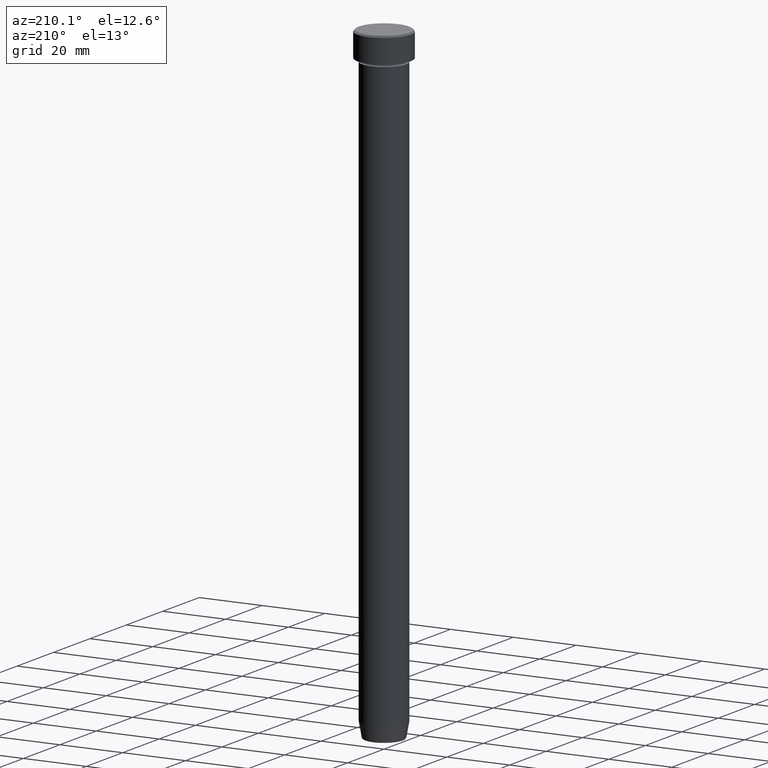
[diagram: clean part render]
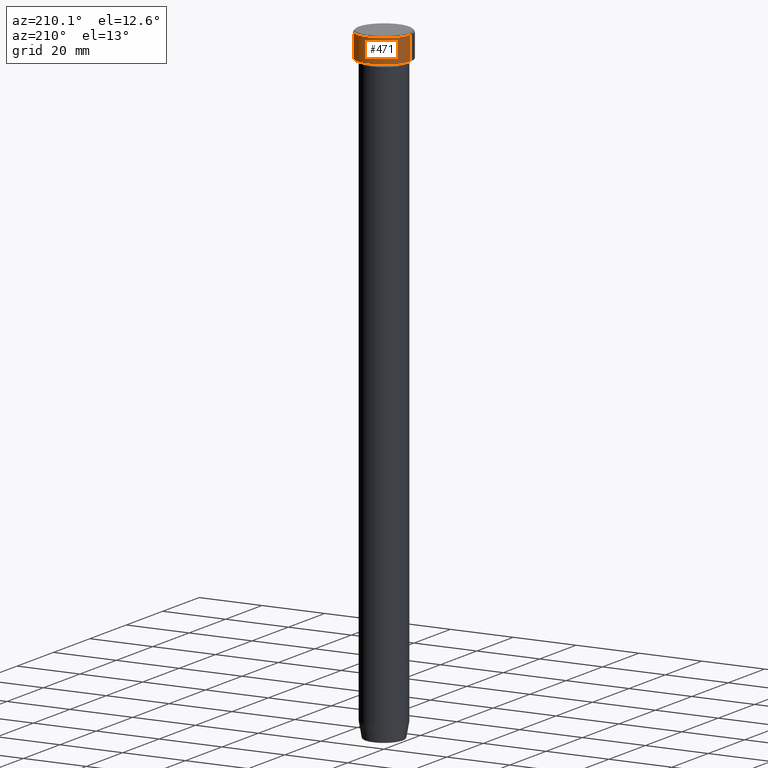
[diagram: same view with one face highlighted and labeled with its STEP entity id]
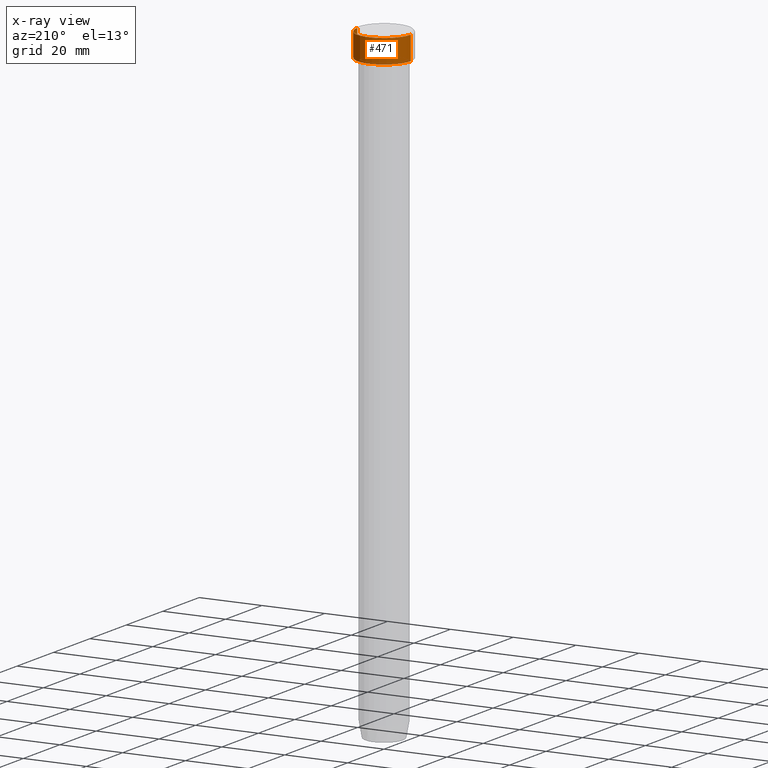
[diagram: x-ray of the same camera — body ghosted, the highlighted face saturated]
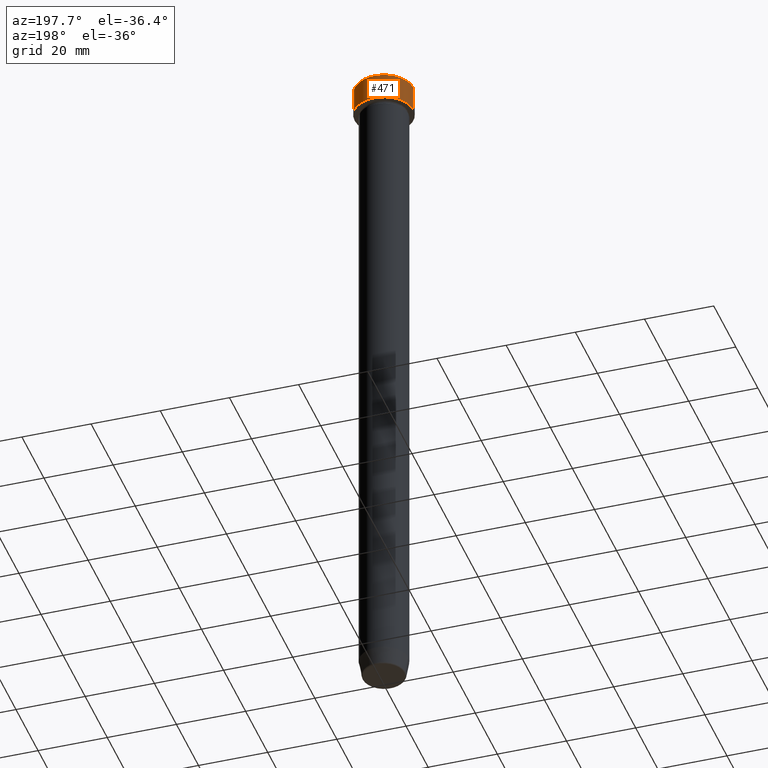
[diagram: same view with one face highlighted and labeled with its STEP entity id]
A machine part, auxiliary view. The second image highlights one B-rep face of the part: STEP entity #471.
The next image is the same camera in x-ray: the body ghosted, the highlighted face saturated — about 0% of this face is hidden behind the body in this view.
A second angle (auxiliary view) of the same face is appended — the face is thin or edge-on in the first view.
In plain terms, the highlighted cylindrical surface (edge-blend (fillet) strip) has radius 8.5 mm, axis along (-0, -0, 1).
Its self-contained STEP definition (entity closure, byte-faithful):
#10 = CARTESIAN_POINT ( 'NONE',  ( 0.000000000000000000, 0.000000000000000000, -8.000000000000000000 ) ) ;
#17 = DIRECTION ( 'NONE',  ( 1.000000000000000000, 0.000000000000000000, 0.000000000000000000 ) ) ;
#51 = CARTESIAN_POINT ( 'NONE',  ( -8.500000000000000000, 1.040949779275250140E-15, 0.000000000000000000 ) ) ;
#63 = VERTEX_POINT ( 'NONE', #586 ) ;
#74 = EDGE_CURVE ( 'NONE', #441, #63, #313, .T. ) ;
#81 = DIRECTION ( 'NONE',  ( 1.000000000000000000, 0.000000000000000000, 0.000000000000000000 ) ) ;
#113 = ORIENTED_EDGE ( 'NONE', *, *, #356, .T. ) ;
#146 = AXIS2_PLACEMENT_3D ( 'NONE', #354, #499, #81 ) ;
#156 = ORIENTED_EDGE ( 'NONE', *, *, #460, .T. ) ;
#171 = CARTESIAN_POINT ( 'NONE',  ( 0.000000000000000000, 0.000000000000000000, 0.000000000000000000 ) ) ;
#178 = DIRECTION ( 'NONE',  ( -0.000000000000000000, -0.000000000000000000, 1.000000000000000000 ) ) ;
#214 = AXIS2_PLACEMENT_3D ( 'NONE', #10, #524, #17 ) ;
#245 = VERTEX_POINT ( 'NONE', #557 ) ;
#248 = EDGE_CURVE ( 'NONE', #245, #348, #470, .T. ) ;
#275 = DIRECTION ( 'NONE',  ( 1.000000000000000000, 0.000000000000000000, 0.000000000000000000 ) ) ;
#289 = EDGE_LOOP ( 'NONE', ( #113, #462, #156, #487 ) ) ;
#304 = CARTESIAN_POINT ( 'NONE',  ( 8.500000000000000000, 0.000000000000000000, -8.000000000000000000 ) ) ;
#313 = LINE ( 'NONE', #589, #597 ) ;
#330 = CIRCLE ( 'NONE', #214, 8.500000000000000000 ) ;
#348 = VERTEX_POINT ( 'NONE', #475 ) ;
#354 = CARTESIAN_POINT ( 'NONE',  ( 0.000000000000000000, 0.000000000000000000, -0.4999999999999987232 ) ) ;
#356 = EDGE_CURVE ( 'NONE', #441, #245, #330, .T. ) ;
#377 = CIRCLE ( 'NONE', #146, 8.500000000000000000 ) ;
#403 = FACE_OUTER_BOUND ( 'NONE', #289, .T. ) ;
#426 = VECTOR ( 'NONE', #521, 1000.000000000000000 ) ;
#441 = VERTEX_POINT ( 'NONE', #304 ) ;
#460 = EDGE_CURVE ( 'NONE', #348, #63, #377, .T. ) ;
#462 = ORIENTED_EDGE ( 'NONE', *, *, #248, .T. ) ;
#470 = LINE ( 'NONE', #51, #426 ) ;
#471 = ADVANCED_FACE ( 'NONE', ( #403 ), #489, .T. ) ;
#475 = CARTESIAN_POINT ( 'NONE',  ( -8.500000000000000000, 1.040949779275250140E-15, -0.4999999999999987232 ) ) ;
#483 = AXIS2_PLACEMENT_3D ( 'NONE', #171, #582, #275 ) ;
#487 = ORIENTED_EDGE ( 'NONE', *, *, #74, .F. ) ;
#489 = CYLINDRICAL_SURFACE ( 'NONE', #483, 8.500000000000000000 ) ;
#499 = DIRECTION ( 'NONE',  ( 0.000000000000000000, 0.000000000000000000, -1.000000000000000000 ) ) ;
#521 = DIRECTION ( 'NONE',  ( -0.000000000000000000, -0.000000000000000000, 1.000000000000000000 ) ) ;
#524 = DIRECTION ( 'NONE',  ( -0.000000000000000000, -0.000000000000000000, 1.000000000000000000 ) ) ;
#557 = CARTESIAN_POINT ( 'NONE',  ( -8.500000000000000000, 1.040949779275250140E-15, -8.000000000000000000 ) ) ;
#582 = DIRECTION ( 'NONE',  ( -0.000000000000000000, -0.000000000000000000, 1.000000000000000000 ) ) ;
#586 = CARTESIAN_POINT ( 'NONE',  ( 8.500000000000000000, 0.000000000000000000, -0.4999999999999987232 ) ) ;
#589 = CARTESIAN_POINT ( 'NONE',  ( 8.500000000000000000, 0.000000000000000000, 0.000000000000000000 ) ) ;
#597 = VECTOR ( 'NONE', #178, 1000.000000000000000 ) ;